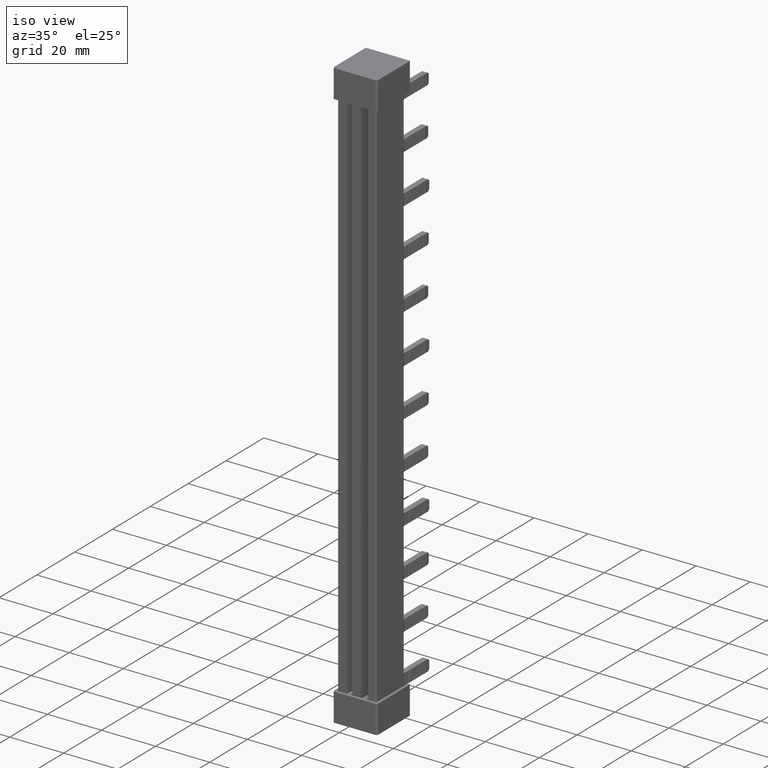
[diagram: clean part render]
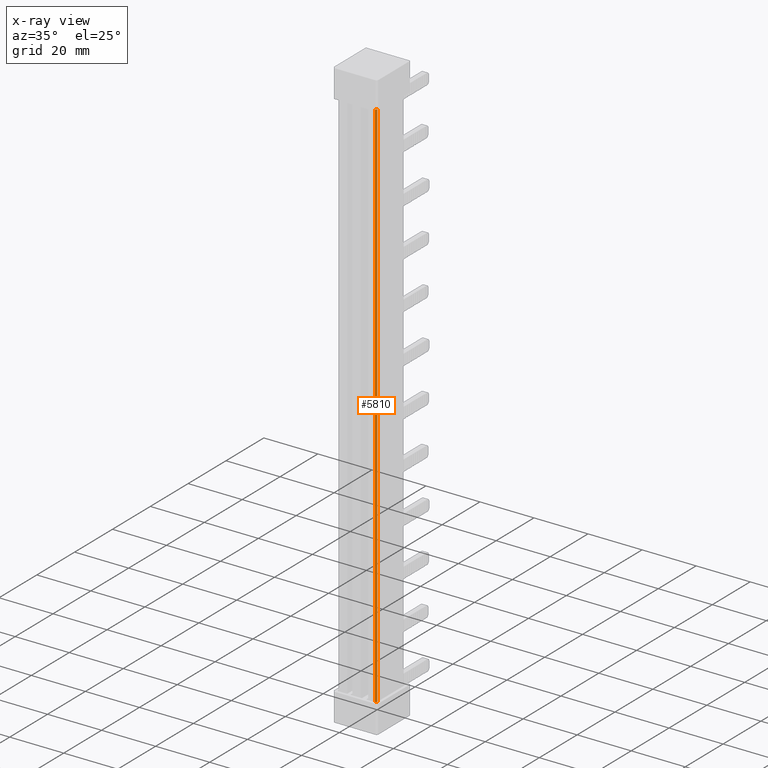
[diagram: x-ray — body ghosted, one internal face saturated and labeled with its STEP entity id]
A machine part, iso view, then the same camera in x-ray: the body is ghosted and one INTERNAL B-rep face — a face not visible from any outside direction — is saturated and labeled: STEP entity #5810.
In plain terms, the highlighted cylindrical surface (edge-blend (fillet) strip) has radius 0.5 mm, axis along (-0, -0, -1).
Its self-contained STEP definition (entity closure, byte-faithful):
#1205 = EDGE_CURVE ( 'NONE', #21218, #21220, #10661, .T. ) ;
#1230 = EDGE_CURVE ( 'NONE', #21277, #21218, #18895, .T. ) ;
#1246 = EDGE_CURVE ( 'NONE', #21220, #21201, #18819, .T. ) ;
#1271 = EDGE_CURVE ( 'NONE', #21277, #21201, #5255, .T. ) ;
#2368 = CARTESIAN_POINT ( 'NONE',  ( 13.17637477970035000, -4.996003610813204400E-013, 208.6000000000520600 ) ) ;
#2375 = CARTESIAN_POINT ( 'NONE',  ( 13.67637477970029600, 0.4999999999992788000, 10.39999999994820000 ) ) ;
#2399 = CARTESIAN_POINT ( 'NONE',  ( 13.17637477970035000, -4.996003610813204400E-013, 10.39999999994795100 ) ) ;
#2474 = CARTESIAN_POINT ( 'NONE',  ( 13.67637477970029600, 0.4999999999992788000, 208.6000000000518100 ) ) ;
#4498 = AXIS2_PLACEMENT_3D ( 'NONE', #9895, #9909, #9919 ) ;
#5147 = CARTESIAN_POINT ( 'NONE',  ( 13.17637477970035000, 0.4999999999992788000, 208.6000000000520600 ) ) ;
#5148 = DIRECTION ( 'NONE',  ( -1.000000000000000000, 0.0000000000000000000, 4.996003610814586800E-013 ) ) ;
#5149 = DIRECTION ( 'NONE',  ( -4.965472477636011600E-013, 0.0000000000000000000, -1.000000000000000000 ) ) ;
#5193 = DIRECTION ( 'NONE',  ( -4.965472477636011600E-013, 0.0000000000000000000, 1.000000000000000000 ) ) ;
#5194 = DIRECTION ( 'NONE',  ( 1.000000000000000000, 0.0000000000000000000, 4.961309141295040500E-013 ) ) ;
#5201 = CARTESIAN_POINT ( 'NONE',  ( 13.17637477970035000, 0.4999999999992788000, 10.39999999994795100 ) ) ;
#5255 = LINE ( 'NONE', #5270, #18967 ) ;
#5262 = DIRECTION ( 'NONE',  ( 0.0000000000000000000, 0.0000000000000000000, -1.000000000000000000 ) ) ;
#5270 = CARTESIAN_POINT ( 'NONE',  ( 13.67637477970029600, 0.4999999999992788000, 219.0000000000000000 ) ) ;
#5810 = ADVANCED_FACE ( 'NONE', ( #9911 ), #9907, .T. ) ;
#9895 = CARTESIAN_POINT ( 'NONE',  ( 13.17637477970035000, 0.4999999999992788000, 219.0000000000000000 ) ) ;
#9907 = CYLINDRICAL_SURFACE ( 'NONE', #4498, 0.4999999999998616700 ) ;
#9909 = DIRECTION ( 'NONE',  ( -0.0000000000000000000, -0.0000000000000000000, -1.000000000000000000 ) ) ;
#9911 = FACE_OUTER_BOUND ( 'NONE', #18091, .T. ) ;
#9919 = DIRECTION ( 'NONE',  ( -1.000000000000000000, 0.0000000000000000000, 0.0000000000000000000 ) ) ;
#10661 = LINE ( 'NONE', #10662, #18730 ) ;
#10662 = CARTESIAN_POINT ( 'NONE',  ( 13.17637477970035000, -4.996003610813204400E-013, 219.0000000000000000 ) ) ;
#10673 = DIRECTION ( 'NONE',  ( -0.0000000000000000000, 0.0000000000000000000, -1.000000000000000000 ) ) ;
#18091 = EDGE_LOOP ( 'NONE', ( #22366, #22387, #22401, #22400 ) ) ;
#18730 = VECTOR ( 'NONE', #10673, 1000.000000000000000 ) ;
#18819 = CIRCLE ( 'NONE', #18883, 0.4999999999998616700 ) ;
#18851 = AXIS2_PLACEMENT_3D ( 'NONE', #5147, #5149, #5148 ) ;
#18883 = AXIS2_PLACEMENT_3D ( 'NONE', #5201, #5193, #5194 ) ;
#18895 = CIRCLE ( 'NONE', #18851, 0.4999999999998616700 ) ;
#18967 = VECTOR ( 'NONE', #5262, 1000.000000000000000 ) ;
#21201 = VERTEX_POINT ( 'NONE', #2375 ) ;
#21218 = VERTEX_POINT ( 'NONE', #2368 ) ;
#21220 = VERTEX_POINT ( 'NONE', #2399 ) ;
#21277 = VERTEX_POINT ( 'NONE', #2474 ) ;
#22366 = ORIENTED_EDGE ( 'NONE', *, *, #1205, .T. ) ;
#22387 = ORIENTED_EDGE ( 'NONE', *, *, #1246, .T. ) ;
#22400 = ORIENTED_EDGE ( 'NONE', *, *, #1230, .T. ) ;
#22401 = ORIENTED_EDGE ( 'NONE', *, *, #1271, .F. ) ;